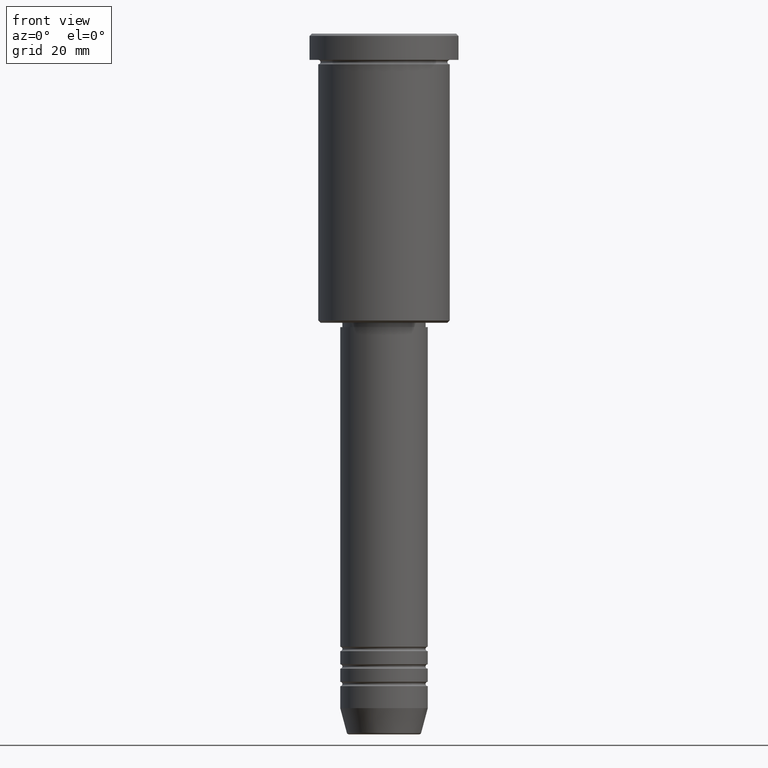
[diagram: clean part render]
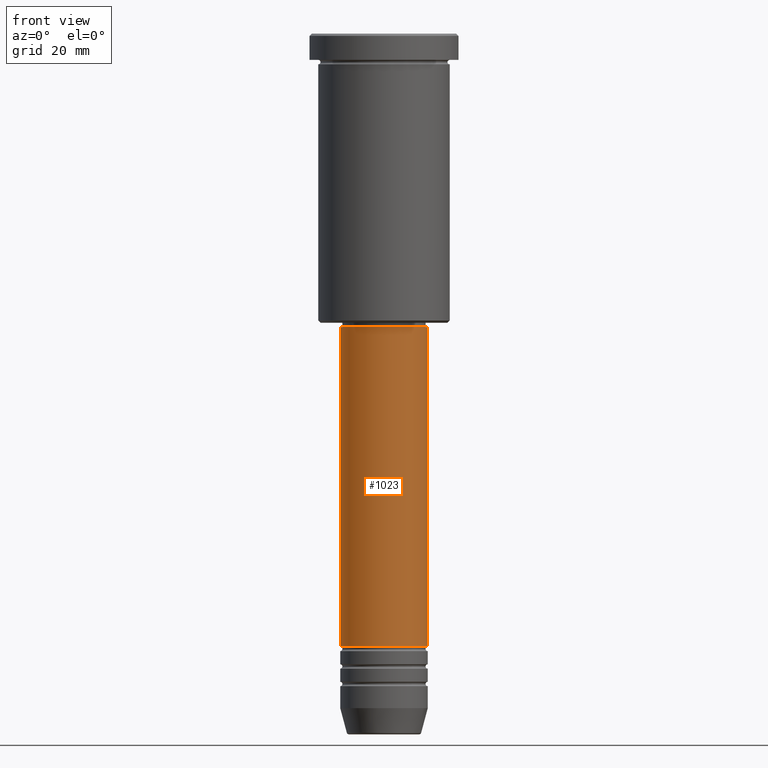
[diagram: same view with one face highlighted and labeled with its STEP entity id]
A machine part, front view. The second image highlights one B-rep face of the part: STEP entity #1023.
In plain terms, the highlighted cylindrical surface (partial cylindrical patch) has radius 10 mm, axis along (-0, -0, 1).
Its self-contained STEP definition (entity closure, byte-faithful):
#22 = CARTESIAN_POINT ( 'NONE',  ( 0.000000000000000000, 0.000000000000000000, -67.00000000000002842 ) ) ;
#27 = VECTOR ( 'NONE', #890, 1000.000000000000000 ) ;
#94 = CARTESIAN_POINT ( 'NONE',  ( 0.000000000000000000, 0.000000000000000000, 0.000000000000000000 ) ) ;
#121 = AXIS2_PLACEMENT_3D ( 'NONE', #94, #1160, #688 ) ;
#165 = CARTESIAN_POINT ( 'NONE',  ( -10.00000000000000000, 1.224646799147353256E-15, 0.000000000000000000 ) ) ;
#201 = DIRECTION ( 'NONE',  ( -0.000000000000000000, -0.000000000000000000, 1.000000000000000000 ) ) ;
#278 = EDGE_CURVE ( 'NONE', #1029, #849, #777, .T. ) ;
#295 = DIRECTION ( 'NONE',  ( 1.000000000000000000, 0.000000000000000000, 0.000000000000000000 ) ) ;
#315 = EDGE_LOOP ( 'NONE', ( #944, #507, #667, #392 ) ) ;
#328 = EDGE_CURVE ( 'NONE', #432, #849, #1140, .T. ) ;
#340 = DIRECTION ( 'NONE',  ( -0.000000000000000000, -0.000000000000000000, 1.000000000000000000 ) ) ;
#392 = ORIENTED_EDGE ( 'NONE', *, *, #278, .F. ) ;
#396 = VERTEX_POINT ( 'NONE', #974 ) ;
#432 = VERTEX_POINT ( 'NONE', #771 ) ;
#492 = CARTESIAN_POINT ( 'NONE',  ( 10.00000000000000000, 0.000000000000000000, 0.000000000000000000 ) ) ;
#507 = ORIENTED_EDGE ( 'NONE', *, *, #687, .T. ) ;
#533 = LINE ( 'NONE', #165, #27 ) ;
#554 = DIRECTION ( 'NONE',  ( -0.000000000000000000, -0.000000000000000000, 1.000000000000000000 ) ) ;
#557 = AXIS2_PLACEMENT_3D ( 'NONE', #22, #201, #295 ) ;
#623 = FACE_OUTER_BOUND ( 'NONE', #315, .T. ) ;
#667 = ORIENTED_EDGE ( 'NONE', *, *, #328, .T. ) ;
#687 = EDGE_CURVE ( 'NONE', #396, #432, #736, .T. ) ;
#688 = DIRECTION ( 'NONE',  ( 1.000000000000000000, 0.000000000000000000, 0.000000000000000000 ) ) ;
#736 = CIRCLE ( 'NONE', #759, 10.00000000000000178 ) ;
#759 = AXIS2_PLACEMENT_3D ( 'NONE', #1164, #340, #1150 ) ;
#771 = CARTESIAN_POINT ( 'NONE',  ( 10.00000000000000178, 0.000000000000000000, -139.9999999999999716 ) ) ;
#777 = CIRCLE ( 'NONE', #557, 9.999999999999998224 ) ;
#809 = CYLINDRICAL_SURFACE ( 'NONE', #121, 10.00000000000000000 ) ;
#849 = VERTEX_POINT ( 'NONE', #1074 ) ;
#890 = DIRECTION ( 'NONE',  ( -0.000000000000000000, -0.000000000000000000, 1.000000000000000000 ) ) ;
#944 = ORIENTED_EDGE ( 'NONE', *, *, #985, .F. ) ;
#960 = CARTESIAN_POINT ( 'NONE',  ( -9.999999999999998224, 1.224646799147353256E-15, -67.00000000000002842 ) ) ;
#974 = CARTESIAN_POINT ( 'NONE',  ( -10.00000000000000178, 1.224646799147353454E-15, -139.9999999999999716 ) ) ;
#978 = VECTOR ( 'NONE', #554, 1000.000000000000000 ) ;
#985 = EDGE_CURVE ( 'NONE', #396, #1029, #533, .T. ) ;
#1023 = ADVANCED_FACE ( 'NONE', ( #623 ), #809, .T. ) ;
#1029 = VERTEX_POINT ( 'NONE', #960 ) ;
#1074 = CARTESIAN_POINT ( 'NONE',  ( 9.999999999999998224, 0.000000000000000000, -67.00000000000002842 ) ) ;
#1140 = LINE ( 'NONE', #492, #978 ) ;
#1150 = DIRECTION ( 'NONE',  ( 1.000000000000000000, 0.000000000000000000, 0.000000000000000000 ) ) ;
#1160 = DIRECTION ( 'NONE',  ( -0.000000000000000000, -0.000000000000000000, 1.000000000000000000 ) ) ;
#1164 = CARTESIAN_POINT ( 'NONE',  ( 0.000000000000000000, 0.000000000000000000, -139.9999999999999716 ) ) ;